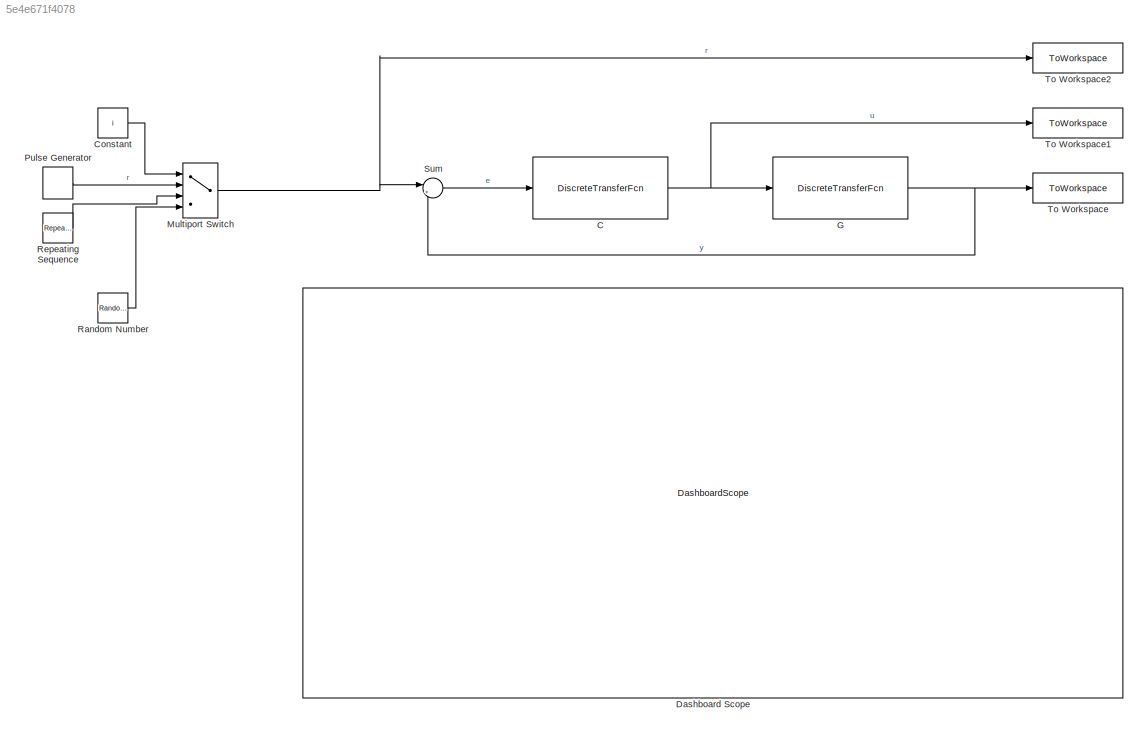
MODEL slx_5e4e671f4078
KIND model
CONFIG AbsTol = auto
CONFIG EnableMultiTasking = off
CONFIG FixedStep = auto
CONFIG MaxStep = auto
CONFIG MinStep = auto
CONFIG RelTol = 1e-3
CONFIG SampleTimeConstraint = Unconstrained
CONFIG SolverName = VariableStepAuto
CONFIG StartTime = 0.0
CONFIG StopTime = 10.0
BLOCK [DiscreteTransferFcn] C
  Denominator = [1 -1]
  InputPortMap = u0
  Numerator = [(kp0+ki0) -kp0]
  Ports = [1, 1]
  SampleTime = T
BLOCK [Constant] Constant
  Value = i
BLOCK [DashboardScope] Dashboard Scope
BLOCK [DiscreteTransferFcn] G
  Denominator = [1 -1]
  InputPortMap = u0
  Ports = [1, 1]
  SampleTime = T
BLOCK [MultiPortSwitch] Multiport Switch
  InputSameDT = off
  Ports = [4, 1]
  SaturateOnIntegerOverflow = off
BLOCK [DiscretePulseGenerator] Pulse Generator
  Ports = [0, 1]
  PulseType = Time based
  PulseWidth = 50
BLOCK [RandomNumber] Random Number
  SampleTime = 1
BLOCK [Reference] Repeating Sequence  REF=simulink/Sources/Repeating
Sequence
  Ports = [0, 1]
  SourceBlock = simulink/Sources/Repeating\nSequence
  SourceProductBaseCode = SL
  SourceType = Repeating table
BLOCK [Sum] Sum
  Inputs = |+-
  Ports = [2, 1]
BLOCK [ToWorkspace] To Workspace
  FixptAsFi = on
  MaxDataPoints = inf
  Ports = [1]
  SampleTime = T
  SaveFormat = Timeseries
  VariableName = y
BLOCK [ToWorkspace] To Workspace1
  FixptAsFi = on
  MaxDataPoints = inf
  Ports = [1]
  SampleTime = T
  SaveFormat = Timeseries
  VariableName = u
BLOCK [ToWorkspace] To Workspace2
  FixptAsFi = on
  MaxDataPoints = inf
  Ports = [1]
  SampleTime = T
  SaveFormat = Timeseries
  VariableName = r
NET C:1 -> G:1, To Workspace1:1
LINE Constant:1 -> Multiport Switch:1
NET G:1 -> Sum:2, To Workspace:1
NET Multiport Switch:1 -> Sum:1, To Workspace2:1
LINE Pulse Generator:1 -> Multiport Switch:2
LINE Random Number:1 -> Multiport Switch:4
LINE Repeating Sequence:1 -> Multiport Switch:3
LINE Sum:1 -> C:1
note: NET lines group one-source signal fan-out (src -> all destinations, sorted); 1:1 wires keep LINE
